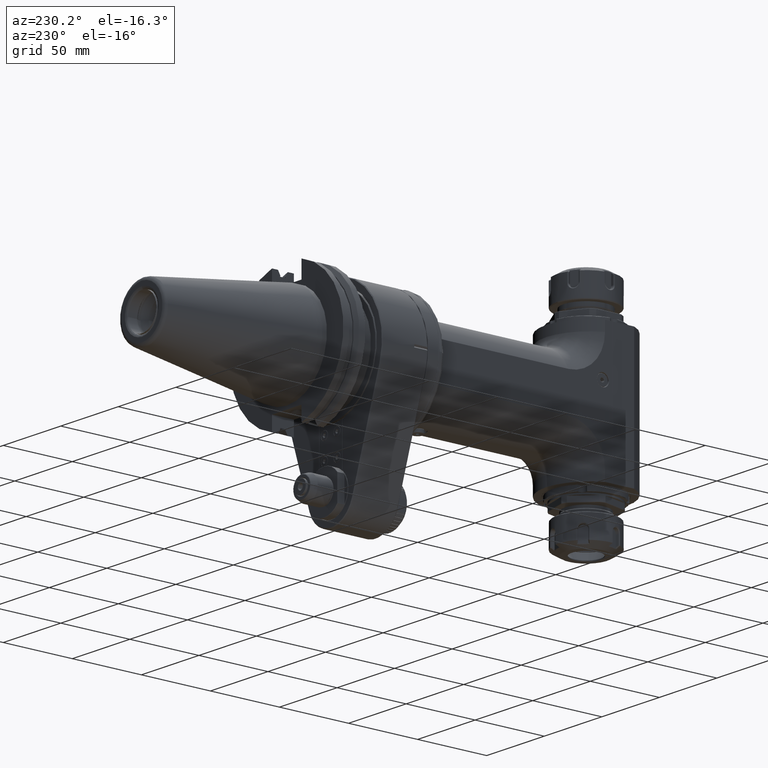
[diagram: clean part render]
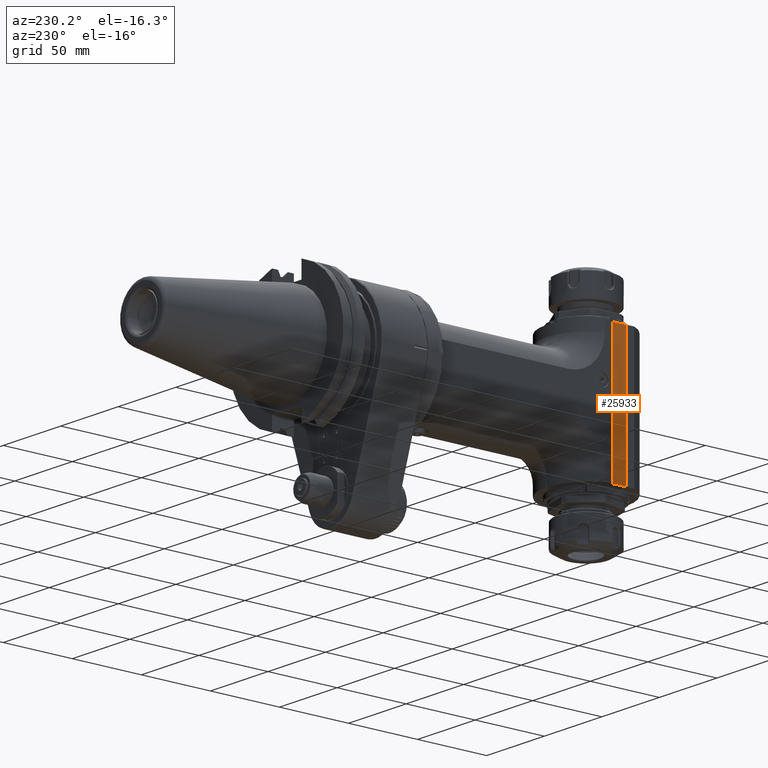
[diagram: same view with one face highlighted and labeled with its STEP entity id]
A machine part, auxiliary view. The second image highlights one B-rep face of the part: STEP entity #25933.
In plain terms, the highlighted planar face has unit normal (1, 0, -0).
Its self-contained STEP definition (entity closure, byte-faithful):
#3598=FACE_OUTER_BOUND('',#5208,.T.);
#5208=EDGE_LOOP('',(#19749,#19750,#19751,#19752));
#7051=LINE('',#41479,#9041);
#7072=LINE('',#41525,#9062);
#7135=LINE('',#41994,#9125);
#7136=LINE('',#41996,#9126);
#9041=VECTOR('',#32533,9.7);
#9062=VECTOR('',#32564,9.7);
#9125=VECTOR('',#32747,94.);
#9126=VECTOR('',#32750,94.);
#11170=VERTEX_POINT('',#41476);
#11171=VERTEX_POINT('',#41478);
#11190=VERTEX_POINT('',#41522);
#11191=VERTEX_POINT('',#41524);
#14256=EDGE_CURVE('',#11170,#11171,#7051,.T.);
#14279=EDGE_CURVE('',#11191,#11190,#7072,.T.);
#14444=EDGE_CURVE('',#11191,#11170,#7135,.T.);
#14445=EDGE_CURVE('',#11190,#11171,#7136,.T.);
#19749=ORIENTED_EDGE('',*,*,#14279,.T.);
#19750=ORIENTED_EDGE('',*,*,#14445,.T.);
#19751=ORIENTED_EDGE('',*,*,#14256,.F.);
#19752=ORIENTED_EDGE('',*,*,#14444,.F.);
#24990=PLANE('',#28136);
#25933=ADVANCED_FACE('',(#3598),#24990,.F.);
#28136=AXIS2_PLACEMENT_3D('',#41995,#32748,#32749);
#32533=DIRECTION('',(0.,-1.,0.));
#32564=DIRECTION('',(0.,-1.,0.));
#32747=DIRECTION('',(0.,0.,1.));
#32748=DIRECTION('center_axis',(1.,0.,0.));
#32749=DIRECTION('ref_axis',(0.,-1.,0.));
#32750=DIRECTION('',(0.,0.,1.));
#41476=CARTESIAN_POINT('',(-28.9,-171.95,47.));
#41478=CARTESIAN_POINT('',(-28.9,-181.65,47.));
#41479=CARTESIAN_POINT('',(-28.9,-171.95,47.));
#41522=CARTESIAN_POINT('',(-28.9,-181.65,-47.));
#41524=CARTESIAN_POINT('',(-28.9,-171.95,-47.));
#41525=CARTESIAN_POINT('',(-28.9,-171.95,-47.));
#41994=CARTESIAN_POINT('',(-28.9,-171.95,-47.));
#41995=CARTESIAN_POINT('Origin',(-28.9,-171.95,-47.));
#41996=CARTESIAN_POINT('',(-28.9,-181.65,-47.));